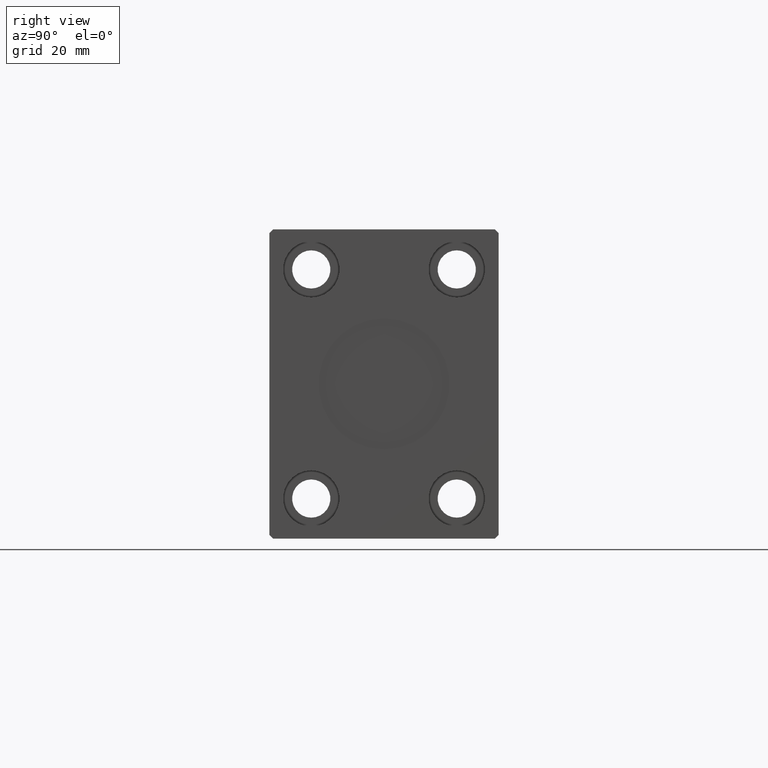
[diagram: clean part render]
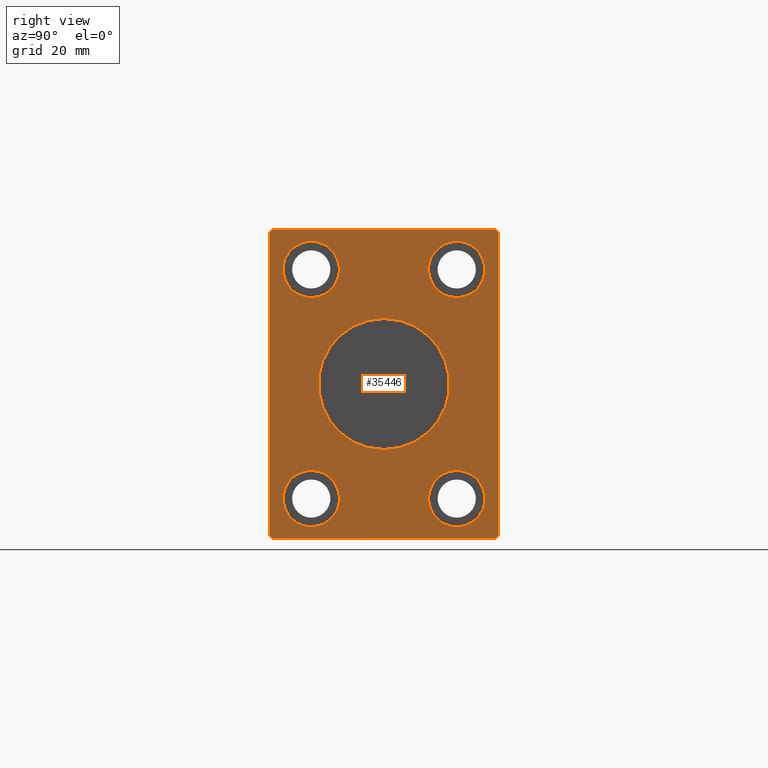
[diagram: same view with one face highlighted and labeled with its STEP entity id]
A machine part, right view. The second image highlights one B-rep face of the part: STEP entity #35446.
In plain terms, the highlighted planar face has unit normal (1, 0, 0).
Its self-contained STEP definition (entity closure, byte-faithful):
#6 = AXIS2_PLACEMENT_3D ( 'NONE', #22016, #34278, #12150 ) ;
#287 = CARTESIAN_POINT ( 'NONE',  ( 171.0000000000000000, 20.00000000000000355, -31.49999999999998579 ) ) ;
#305 = EDGE_CURVE ( 'NONE', #28336, #14427, #28115, .T. ) ;
#562 = DIRECTION ( 'NONE',  ( 0.000000000000000000, 0.000000000000000000, 1.000000000000000000 ) ) ;
#585 = EDGE_CURVE ( 'NONE', #13787, #17751, #10557, .T. ) ;
#745 = AXIS2_PLACEMENT_3D ( 'NONE', #8445, #37448, #14882 ) ;
#749 = VERTEX_POINT ( 'NONE', #34582 ) ;
#926 = EDGE_CURVE ( 'NONE', #14427, #28336, #2839, .T. ) ;
#1372 = FACE_BOUND ( 'NONE', #19871, .T. ) ;
#1921 = VERTEX_POINT ( 'NONE', #10948 ) ;
#2079 = EDGE_LOOP ( 'NONE', ( #6629, #11850 ) ) ;
#2276 = DIRECTION ( 'NONE',  ( -1.000000000000000000, -0.000000000000000000, -0.000000000000000000 ) ) ;
#2839 = CIRCLE ( 'NONE', #6, 7.750000000000000000 ) ;
#3243 = EDGE_CURVE ( 'NONE', #749, #16227, #22000, .T. ) ;
#3419 = LINE ( 'NONE', #36069, #20927 ) ;
#3746 = ORIENTED_EDGE ( 'NONE', *, *, #3243, .T. ) ;
#3757 = DIRECTION ( 'NONE',  ( 1.000000000000000000, -0.000000000000000000, -0.000000000000000000 ) ) ;
#3909 = CARTESIAN_POINT ( 'NONE',  ( 171.0000000000000000, -30.50000000000000355, 42.49999999999999289 ) ) ;
#4301 = VERTEX_POINT ( 'NONE', #34080 ) ;
#4792 = ORIENTED_EDGE ( 'NONE', *, *, #30758, .T. ) ;
#5552 = AXIS2_PLACEMENT_3D ( 'NONE', #26124, #20093, #562 ) ;
#5636 = VERTEX_POINT ( 'NONE', #27667 ) ;
#5868 = EDGE_CURVE ( 'NONE', #8998, #4301, #22045, .T. ) ;
#5927 = EDGE_CURVE ( 'NONE', #16227, #749, #28910, .T. ) ;
#6147 = VERTEX_POINT ( 'NONE', #20207 ) ;
#6149 = CARTESIAN_POINT ( 'NONE',  ( 171.0000000000000000, 0.000000000000000000, 0.000000000000000000 ) ) ;
#6215 = CARTESIAN_POINT ( 'NONE',  ( 171.0000000000000000, 30.50000000000001776, -42.50000000000000711 ) ) ;
#6330 = AXIS2_PLACEMENT_3D ( 'NONE', #23498, #32150, #7194 ) ;
#6371 = DIRECTION ( 'NONE',  ( 0.000000000000000000, 0.000000000000000000, -1.000000000000000000 ) ) ;
#6629 = ORIENTED_EDGE ( 'NONE', *, *, #305, .F. ) ;
#6940 = CIRCLE ( 'NONE', #16524, 18.00000000000000000 ) ;
#7194 = DIRECTION ( 'NONE',  ( 0.000000000000000000, 0.000000000000000000, -1.000000000000000000 ) ) ;
#7550 = VECTOR ( 'NONE', #27216, 1000.000000000000000 ) ;
#7759 = EDGE_CURVE ( 'NONE', #15638, #36212, #34433, .T. ) ;
#7892 = EDGE_LOOP ( 'NONE', ( #8140, #40322 ) ) ;
#8140 = ORIENTED_EDGE ( 'NONE', *, *, #26081, .F. ) ;
#8403 = AXIS2_PLACEMENT_3D ( 'NONE', #287, #10158, #9737 ) ;
#8445 = CARTESIAN_POINT ( 'NONE',  ( 171.0000000000000000, 0.000000000000000000, 0.000000000000000000 ) ) ;
#8731 = VERTEX_POINT ( 'NONE', #30415 ) ;
#8998 = VERTEX_POINT ( 'NONE', #37006 ) ;
#9142 = VECTOR ( 'NONE', #32822, 999.9999999999998863 ) ;
#9737 = DIRECTION ( 'NONE',  ( 0.000000000000000000, 0.000000000000000000, 1.000000000000000000 ) ) ;
#9763 = CARTESIAN_POINT ( 'NONE',  ( 171.0000000000000000, 0.000000000000000000, 0.000000000000000000 ) ) ;
#10088 = EDGE_CURVE ( 'NONE', #5636, #8998, #19525, .T. ) ;
#10158 = DIRECTION ( 'NONE',  ( -1.000000000000000000, -0.000000000000000000, -0.000000000000000000 ) ) ;
#10410 = CARTESIAN_POINT ( 'NONE',  ( 171.0000000000000000, -19.99999999999999645, -23.74999999999998579 ) ) ;
#10557 = LINE ( 'NONE', #3909, #41148 ) ;
#10948 = CARTESIAN_POINT ( 'NONE',  ( 171.0000000000000000, 20.00000000000000355, -23.74999999999998579 ) ) ;
#11043 = ORIENTED_EDGE ( 'NONE', *, *, #23461, .T. ) ;
#11242 = FACE_BOUND ( 'NONE', #2079, .T. ) ;
#11648 = DIRECTION ( 'NONE',  ( -1.000000000000000000, -0.000000000000000000, -0.000000000000000000 ) ) ;
#11850 = ORIENTED_EDGE ( 'NONE', *, *, #926, .F. ) ;
#11900 = CARTESIAN_POINT ( 'NONE',  ( 171.0000000000000000, 20.00000000000000355, 39.25000000000001421 ) ) ;
#12150 = DIRECTION ( 'NONE',  ( 0.000000000000000000, 0.000000000000000000, -1.000000000000000000 ) ) ;
#12659 = CARTESIAN_POINT ( 'NONE',  ( 171.0000000000000000, -19.99999999999999645, -39.24999999999998579 ) ) ;
#12665 = CIRCLE ( 'NONE', #35977, 18.00000000000000000 ) ;
#13787 = VERTEX_POINT ( 'NONE', #36571 ) ;
#13843 = DIRECTION ( 'NONE',  ( 0.000000000000000000, 0.000000000000000000, -1.000000000000000000 ) ) ;
#13944 = VECTOR ( 'NONE', #29649, 1000.000000000000114 ) ;
#13978 = CARTESIAN_POINT ( 'NONE',  ( 171.0000000000000000, 20.00000000000000355, 23.75000000000001421 ) ) ;
#14105 = CARTESIAN_POINT ( 'NONE',  ( 171.0000000000000000, -31.50000000000000000, 41.49999999999999289 ) ) ;
#14201 = EDGE_CURVE ( 'NONE', #38060, #6147, #12665, .T. ) ;
#14427 = VERTEX_POINT ( 'NONE', #11900 ) ;
#14455 = FACE_OUTER_BOUND ( 'NONE', #25960, .T. ) ;
#14800 = VERTEX_POINT ( 'NONE', #15863 ) ;
#14882 = DIRECTION ( 'NONE',  ( 0.000000000000000000, 0.000000000000000000, -1.000000000000000000 ) ) ;
#15366 = DIRECTION ( 'NONE',  ( 0.000000000000000000, 0.000000000000000000, 1.000000000000000000 ) ) ;
#15516 = CARTESIAN_POINT ( 'NONE',  ( 171.0000000000000000, -19.99999999999999645, 31.50000000000001421 ) ) ;
#15537 = ORIENTED_EDGE ( 'NONE', *, *, #17820, .T. ) ;
#15638 = VERTEX_POINT ( 'NONE', #12659 ) ;
#15863 = CARTESIAN_POINT ( 'NONE',  ( 171.0000000000000000, -31.50000000000000000, -41.50000000000000711 ) ) ;
#15875 = VECTOR ( 'NONE', #35161, 1000.000000000000000 ) ;
#16022 = DIRECTION ( 'NONE',  ( 1.000000000000000000, 0.000000000000000000, 0.000000000000000000 ) ) ;
#16227 = VERTEX_POINT ( 'NONE', #38327 ) ;
#16524 = AXIS2_PLACEMENT_3D ( 'NONE', #9763, #22850, #35331 ) ;
#16547 = CARTESIAN_POINT ( 'NONE',  ( 171.0000000000000000, -31.50000000000000000, -41.50000000000000711 ) ) ;
#16620 = CARTESIAN_POINT ( 'NONE',  ( 171.0000000000000000, 20.00000000000000355, 31.50000000000001421 ) ) ;
#17751 = VERTEX_POINT ( 'NONE', #39075 ) ;
#17820 = EDGE_CURVE ( 'NONE', #32355, #5636, #3419, .T. ) ;
#17826 = DIRECTION ( 'NONE',  ( 0.000000000000000000, -0.7071067811865462405, -0.7071067811865489050 ) ) ;
#17902 = ORIENTED_EDGE ( 'NONE', *, *, #41246, .T. ) ;
#17925 = CARTESIAN_POINT ( 'NONE',  ( 171.0000000000000000, 30.50000000000001421, 42.49999999999999289 ) ) ;
#18226 = CARTESIAN_POINT ( 'NONE',  ( 171.0000000000000000, -30.50000000000000711, -42.50000000000000711 ) ) ;
#18577 = CARTESIAN_POINT ( 'NONE',  ( 171.0000000000000000, 20.00000000000000355, -31.49999999999998579 ) ) ;
#19525 = LINE ( 'NONE', #6215, #9142 ) ;
#19871 = EDGE_LOOP ( 'NONE', ( #17902, #28843 ) ) ;
#19987 = VECTOR ( 'NONE', #31656, 1000.000000000000000 ) ;
#20093 = DIRECTION ( 'NONE',  ( -1.000000000000000000, -0.000000000000000000, -0.000000000000000000 ) ) ;
#20207 = CARTESIAN_POINT ( 'NONE',  ( 171.0000000000000000, 0.000000000000000000, -18.00000000000000000 ) ) ;
#20556 = AXIS2_PLACEMENT_3D ( 'NONE', #16620, #3757, #29930 ) ;
#20714 = CIRCLE ( 'NONE', #26934, 7.750000000000000000 ) ;
#20927 = VECTOR ( 'NONE', #32827, 1000.000000000000000 ) ;
#22000 = CIRCLE ( 'NONE', #5552, 7.750000000000000000 ) ;
#22016 = CARTESIAN_POINT ( 'NONE',  ( 171.0000000000000000, 20.00000000000000355, 31.50000000000001421 ) ) ;
#22045 = LINE ( 'NONE', #32356, #15875 ) ;
#22845 = VERTEX_POINT ( 'NONE', #24707 ) ;
#22850 = DIRECTION ( 'NONE',  ( 1.000000000000000000, 0.000000000000000000, 0.000000000000000000 ) ) ;
#23461 = EDGE_CURVE ( 'NONE', #17751, #14800, #41742, .T. ) ;
#23498 = CARTESIAN_POINT ( 'NONE',  ( 171.0000000000000000, -19.99999999999999645, -31.49999999999998579 ) ) ;
#23567 = EDGE_LOOP ( 'NONE', ( #26792, #36946 ) ) ;
#24152 = CIRCLE ( 'NONE', #8403, 7.750000000000000000 ) ;
#24344 = PLANE ( 'NONE',  #745 ) ;
#24549 = FACE_BOUND ( 'NONE', #36972, .T. ) ;
#24707 = CARTESIAN_POINT ( 'NONE',  ( 171.0000000000000000, 20.00000000000000355, -39.24999999999998579 ) ) ;
#25960 = EDGE_LOOP ( 'NONE', ( #36145, #38399, #27926, #11043, #4792, #15537, #42154, #35478 ) ) ;
#26081 = EDGE_CURVE ( 'NONE', #6147, #38060, #6940, .T. ) ;
#26124 = CARTESIAN_POINT ( 'NONE',  ( 171.0000000000000000, -19.99999999999999645, 31.50000000000001421 ) ) ;
#26223 = LINE ( 'NONE', #16547, #13944 ) ;
#26264 = EDGE_CURVE ( 'NONE', #4301, #8731, #39133, .T. ) ;
#26555 = ORIENTED_EDGE ( 'NONE', *, *, #5927, .T. ) ;
#26792 = ORIENTED_EDGE ( 'NONE', *, *, #7759, .F. ) ;
#26934 = AXIS2_PLACEMENT_3D ( 'NONE', #37035, #40068, #13843 ) ;
#27216 = DIRECTION ( 'NONE',  ( 0.000000000000000000, 0.000000000000000000, -1.000000000000000000 ) ) ;
#27667 = CARTESIAN_POINT ( 'NONE',  ( 171.0000000000000000, 30.50000000000001776, -42.50000000000000711 ) ) ;
#27926 = ORIENTED_EDGE ( 'NONE', *, *, #585, .T. ) ;
#28115 = CIRCLE ( 'NONE', #20556, 7.750000000000000000 ) ;
#28336 = VERTEX_POINT ( 'NONE', #13978 ) ;
#28843 = ORIENTED_EDGE ( 'NONE', *, *, #37386, .T. ) ;
#28887 = CIRCLE ( 'NONE', #30920, 7.750000000000000000 ) ;
#28910 = CIRCLE ( 'NONE', #41956, 7.750000000000000000 ) ;
#29649 = DIRECTION ( 'NONE',  ( 0.000000000000000000, 0.7071067811865451302, -0.7071067811865500152 ) ) ;
#29930 = DIRECTION ( 'NONE',  ( 0.000000000000000000, 0.000000000000000000, -1.000000000000000000 ) ) ;
#30415 = CARTESIAN_POINT ( 'NONE',  ( 171.0000000000000000, 30.50000000000001421, 42.49999999999999289 ) ) ;
#30758 = EDGE_CURVE ( 'NONE', #14800, #32355, #26223, .T. ) ;
#30920 = AXIS2_PLACEMENT_3D ( 'NONE', #18577, #2276, #15366 ) ;
#31281 = CARTESIAN_POINT ( 'NONE',  ( 171.0000000000000000, 2.204364238465235428E-15, 18.00000000000000000 ) ) ;
#31656 = DIRECTION ( 'NONE',  ( 0.000000000000000000, -1.000000000000000000, 0.000000000000000000 ) ) ;
#32150 = DIRECTION ( 'NONE',  ( 1.000000000000000000, -0.000000000000000000, -0.000000000000000000 ) ) ;
#32355 = VERTEX_POINT ( 'NONE', #18226 ) ;
#32356 = CARTESIAN_POINT ( 'NONE',  ( 171.0000000000000000, 31.50000000000001421, -41.50000000000000711 ) ) ;
#32822 = DIRECTION ( 'NONE',  ( 0.000000000000000000, 0.7071067811865462405, 0.7071067811865489050 ) ) ;
#32827 = DIRECTION ( 'NONE',  ( 0.000000000000000000, 1.000000000000000000, 0.000000000000000000 ) ) ;
#34080 = CARTESIAN_POINT ( 'NONE',  ( 171.0000000000000000, 31.50000000000001421, 41.49999999999999289 ) ) ;
#34278 = DIRECTION ( 'NONE',  ( 1.000000000000000000, -0.000000000000000000, -0.000000000000000000 ) ) ;
#34433 = CIRCLE ( 'NONE', #6330, 7.750000000000000000 ) ;
#34582 = CARTESIAN_POINT ( 'NONE',  ( 171.0000000000000000, -19.99999999999999645, 23.75000000000001421 ) ) ;
#35161 = DIRECTION ( 'NONE',  ( 0.000000000000000000, 0.000000000000000000, 1.000000000000000000 ) ) ;
#35331 = DIRECTION ( 'NONE',  ( 0.000000000000000000, 0.000000000000000000, -1.000000000000000000 ) ) ;
#35446 = ADVANCED_FACE ( 'NONE', ( #41529, #24549, #1372, #14455, #40675, #11242 ), #24344, .T. ) ;
#35478 = ORIENTED_EDGE ( 'NONE', *, *, #5868, .T. ) ;
#35698 = CARTESIAN_POINT ( 'NONE',  ( 171.0000000000000000, 31.50000000000001421, 41.49999999999999289 ) ) ;
#35913 = DIRECTION ( 'NONE',  ( 0.000000000000000000, -0.7071067811865474617, 0.7071067811865474617 ) ) ;
#35977 = AXIS2_PLACEMENT_3D ( 'NONE', #6149, #16022, #6371 ) ;
#36069 = CARTESIAN_POINT ( 'NONE',  ( 171.0000000000000000, -30.50000000000000711, -42.50000000000000711 ) ) ;
#36145 = ORIENTED_EDGE ( 'NONE', *, *, #26264, .T. ) ;
#36212 = VERTEX_POINT ( 'NONE', #10410 ) ;
#36571 = CARTESIAN_POINT ( 'NONE',  ( 171.0000000000000000, -30.50000000000000355, 42.49999999999999289 ) ) ;
#36946 = ORIENTED_EDGE ( 'NONE', *, *, #41793, .F. ) ;
#36972 = EDGE_LOOP ( 'NONE', ( #3746, #26555 ) ) ;
#37006 = CARTESIAN_POINT ( 'NONE',  ( 171.0000000000000000, 31.50000000000001421, -41.50000000000000711 ) ) ;
#37035 = CARTESIAN_POINT ( 'NONE',  ( 171.0000000000000000, -19.99999999999999645, -31.49999999999998579 ) ) ;
#37386 = EDGE_CURVE ( 'NONE', #1921, #22845, #28887, .T. ) ;
#37448 = DIRECTION ( 'NONE',  ( 1.000000000000000000, 0.000000000000000000, 0.000000000000000000 ) ) ;
#38060 = VERTEX_POINT ( 'NONE', #31281 ) ;
#38327 = CARTESIAN_POINT ( 'NONE',  ( 171.0000000000000000, -19.99999999999999645, 39.25000000000001421 ) ) ;
#38386 = EDGE_CURVE ( 'NONE', #8731, #13787, #41130, .T. ) ;
#38399 = ORIENTED_EDGE ( 'NONE', *, *, #38386, .T. ) ;
#38494 = DIRECTION ( 'NONE',  ( 0.000000000000000000, 0.000000000000000000, 1.000000000000000000 ) ) ;
#39075 = CARTESIAN_POINT ( 'NONE',  ( 171.0000000000000000, -31.50000000000000000, 41.49999999999999289 ) ) ;
#39133 = LINE ( 'NONE', #35698, #41924 ) ;
#40068 = DIRECTION ( 'NONE',  ( 1.000000000000000000, -0.000000000000000000, -0.000000000000000000 ) ) ;
#40322 = ORIENTED_EDGE ( 'NONE', *, *, #14201, .F. ) ;
#40675 = FACE_BOUND ( 'NONE', #23567, .T. ) ;
#41130 = LINE ( 'NONE', #17925, #19987 ) ;
#41148 = VECTOR ( 'NONE', #17826, 999.9999999999998863 ) ;
#41246 = EDGE_CURVE ( 'NONE', #22845, #1921, #24152, .T. ) ;
#41529 = FACE_BOUND ( 'NONE', #7892, .T. ) ;
#41742 = LINE ( 'NONE', #14105, #7550 ) ;
#41793 = EDGE_CURVE ( 'NONE', #36212, #15638, #20714, .T. ) ;
#41924 = VECTOR ( 'NONE', #35913, 1000.000000000000114 ) ;
#41956 = AXIS2_PLACEMENT_3D ( 'NONE', #15516, #11648, #38494 ) ;
#42154 = ORIENTED_EDGE ( 'NONE', *, *, #10088, .T. ) ;